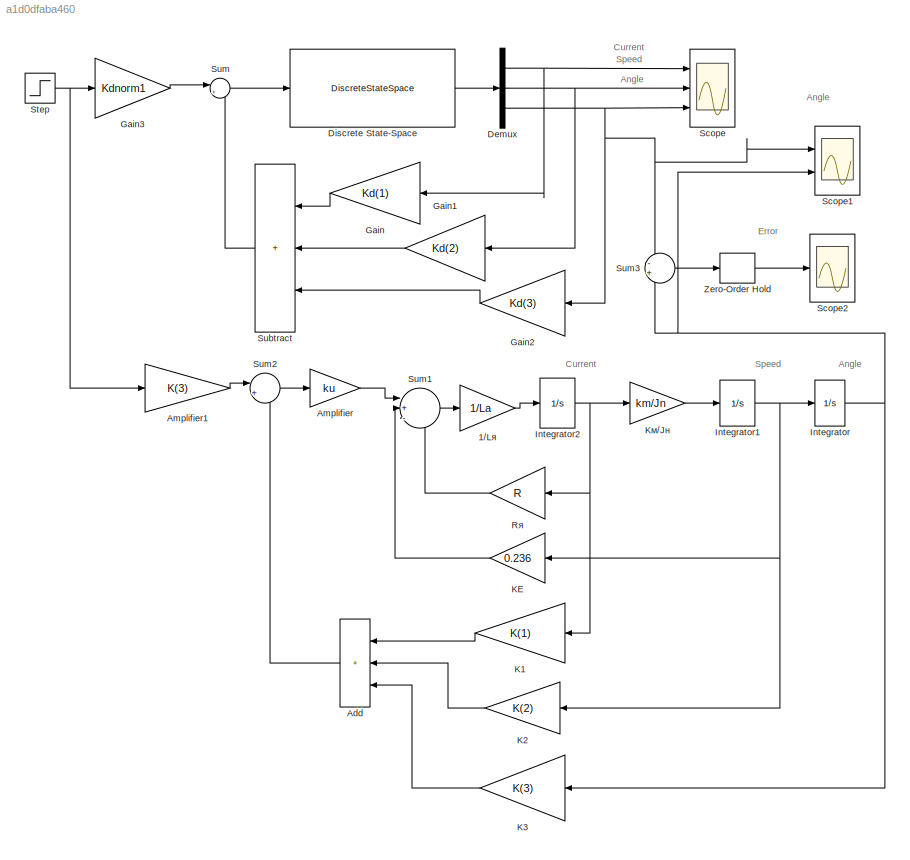
MODEL slx_a1d0dfaba460
KIND model
CONFIG AbsTol = auto
CONFIG EnableMultiTasking = off
CONFIG FixedStep = 0.001
CONFIG MaxStep = auto
CONFIG MinStep = auto
CONFIG RelTol = 1e-3
CONFIG SampleTimeConstraint = Unconstrained
CONFIG SolverName = FixedStepAuto
CONFIG StartTime = 0.0
CONFIG StopTime = 0.1
BLOCK [Gain] 1//Lя
  Gain = 1/La
BLOCK [Sum] Add
  IconShape = rectangular
  Inputs = +++
  Ports = [3, 1]
BLOCK [Gain] Amplifier
  Gain = ku
BLOCK [Gain] Amplifier1
  Gain = K(3)
BLOCK [Demux] Demux
  Outputs = 3
  Ports = [1, 3]
BLOCK [DiscreteStateSpace] Discrete State-Space
  A = Sysd.a
  B = Sysd.b
  C = Sysd.c
  D = Sysd.d
  SampleTime = 0.001
BLOCK [Gain] Gain
  Gain = Kd(1)
BLOCK [Gain] Gain1
  Gain = Kd(2)
BLOCK [Gain] Gain2
  Gain = Kd(3)
BLOCK [Gain] Gain3
  Gain = Kdnorm1
BLOCK [Integrator] Integrator
  Ports = [1, 1]
BLOCK [Integrator] Integrator1
  Ports = [1, 1]
BLOCK [Integrator] Integrator2
  Ports = [1, 1]
BLOCK [Gain] K1
  Gain = K(1)
BLOCK [Gain] K2
  Gain = K(2)
BLOCK [Gain] K3
  Gain = K(3)
BLOCK [Gain] KE
  Gain = 0.236
BLOCK [Gain] Kм//Jн
  Gain = km/Jn
BLOCK [Gain] Rя
  Gain = R
BLOCK [Scope] Scope
  Floating = off
  NumInputPorts = 3
  Ports = [3]
  ScopeSpecificationString = Simulink.scopes.TimeScopeBlockCfg('CurrentConfiguration', extmgr.ConfigurationSet(extmgr.Configuration('Core','General UI',true,'DisplayFullSourceName',true),extmgr.Configuration('Core','Source UI',true),extmgr.Configuration('Sources','WiredSimulink',true),extmgr.Configuration('Visuals','Time Domain',true,'SerializedDisplays',{struct('MinYLimReal','-0.58725','MaxYLimReal','1.59874','YLabelReal',''...<+1545ch>
BLOCK [Scope] Scope1
  Floating = off
  NameLocation = left
  NumInputPorts = 2
  Ports = [2]
  ScopeSpecificationString = Simulink.scopes.TimeScopeBlockCfg('CurrentConfiguration', extmgr.ConfigurationSet(extmgr.Configuration('Core','General UI',true,'FigureColor',[1 1 1]),extmgr.Configuration('Core','Source UI',true),extmgr.Configuration('Sources','WiredSimulink',true,'DataLoggingVariableName','ScopeData1'),extmgr.Configuration('Visuals','Time Domain',true,'SerializedDisplays',{struct('MinYLimReal','-0.13508','MaxYLi...<+1694ch>
BLOCK [Scope] Scope2
  Floating = off
  NumInputPorts = 1
  Ports = [1]
  ScopeSpecificationString = Simulink.scopes.TimeScopeBlockCfg('CurrentConfiguration', extmgr.ConfigurationSet(extmgr.Configuration('Core','General UI',true,'FigureColor',[1 1 1]),extmgr.Configuration('Core','Source UI',true),extmgr.Configuration('Sources','WiredSimulink',true,'DataLoggingVariableName','ScopeData1'),extmgr.Configuration('Visuals','Time Domain',true,'SerializedDisplays',{struct('MinYLimReal','-0.00848','MaxYLi...<+1756ch>
BLOCK [Step] Step
  SampleTime = 0
  Time = 0
BLOCK [Sum] Subtract
  IconShape = rectangular
  Inputs = +++
  Ports = [3, 1]
BLOCK [Sum] Sum
  Inputs = |+-
  Ports = [2, 1]
BLOCK [Sum] Sum1
  Inputs = |+--
  Ports = [3, 1]
BLOCK [Sum] Sum2
  Inputs = |+-
  Ports = [2, 1]
BLOCK [Sum] Sum3
  Inputs = -+
  Ports = [2, 1]
BLOCK [ZeroOrderHold] Zero-Order Hold
  SampleTime = 0.001
ANNOTATION (root): Angle
ANNOTATION (root): Current
ANNOTATION (root): Error
ANNOTATION (root): Speed
LINE 1//Lя:1 -> Integrator2:1
LINE Add:1 -> Sum2:2
LINE Amplifier1:1 -> Sum2:1
LINE Amplifier:1 -> Sum1:1
NET Demux:1 -> Gain:1, Scope:1
NET Demux:2 -> Gain1:1, Scope:2
NET Demux:3 -> Gain2:1, Scope1:1, Scope:3, Sum3:1
LINE Discrete State-Space:1 -> Demux:1
LINE Gain1:1 -> Subtract:2
LINE Gain2:1 -> Subtract:3
LINE Gain3:1 -> Sum:1
LINE Gain:1 -> Subtract:1
NET Integrator1:1 -> Integrator:1, K2:1, KE:1
NET Integrator2:1 -> K1:1, Kм//Jн:1, Rя:1
NET Integrator:1 -> K3:1, Scope1:2, Sum3:2
LINE K1:1 -> Add:1
LINE K2:1 -> Add:2
LINE K3:1 -> Add:3
LINE KE:1 -> Sum1:2
LINE Kм//Jн:1 -> Integrator1:1
LINE Rя:1 -> Sum1:3
NET Step:1 -> Amplifier1:1, Gain3:1
LINE Subtract:1 -> Sum:2
LINE Sum1:1 -> 1//Lя:1
LINE Sum2:1 -> Amplifier:1
LINE Sum3:1 -> Zero-Order Hold:1
LINE Sum:1 -> Discrete State-Space:1
LINE Zero-Order Hold:1 -> Scope2:1
note: NET lines group one-source signal fan-out (src -> all destinations, sorted); 1:1 wires keep LINE
